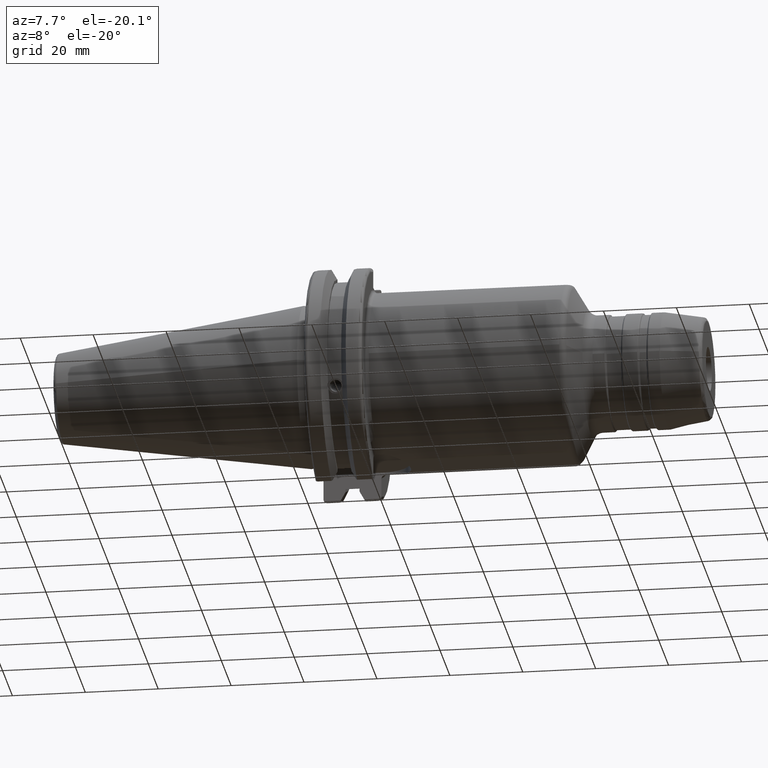
[diagram: clean part render]
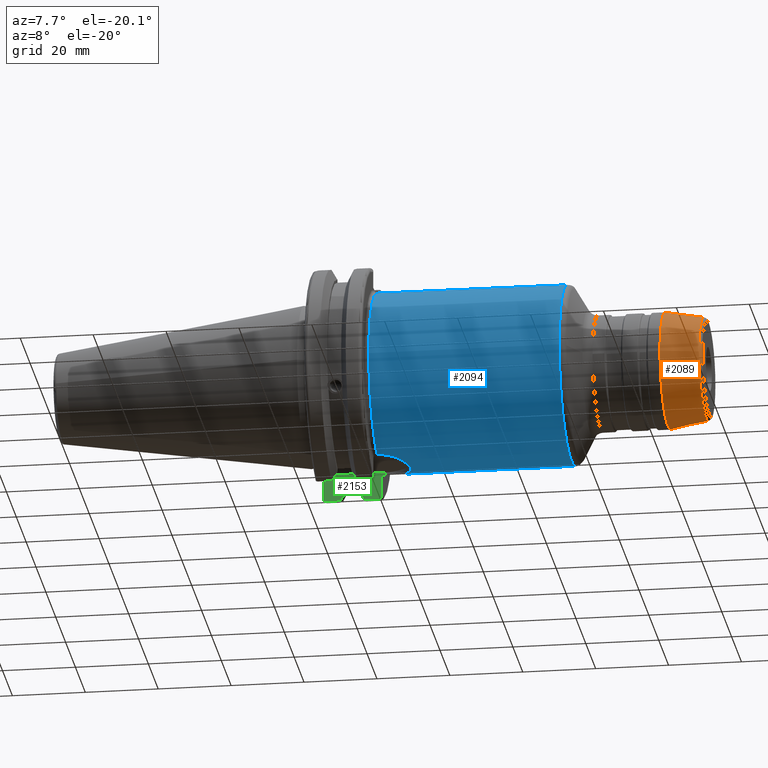
[diagram: same view with three faces highlighted in distinct colors, each labeled with its STEP entity id]
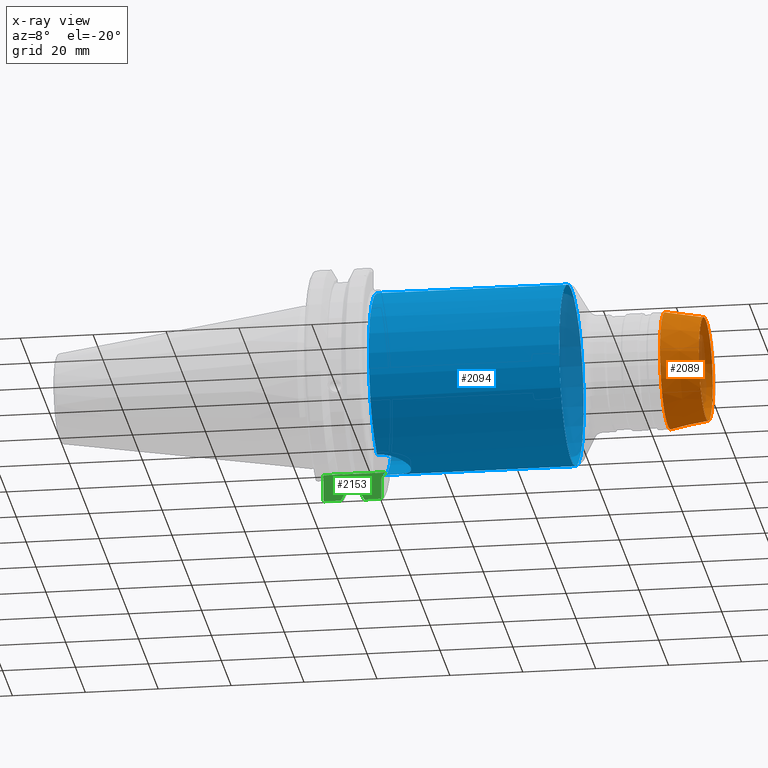
[diagram: x-ray of the same camera — body ghosted, the three highlighted faces saturated]
A machine part, auxiliary view with three faces highlighted in distinct colors.
The next image is the same camera in x-ray (body ghosted, the three faces saturated) — at least one of them is partly hidden behind the body in this view.
Their STEP definitions:

[orange] entity #2089 — the highlighted conical surface has half-angle 10 deg.
#107=CONICAL_SURFACE('',#2290,15.,0.174532925199433);
#190=FACE_OUTER_BOUND('',#298,.T.);
#298=EDGE_LOOP('',(#1513,#1514,#1515,#1516,#1517,#1518,#1519,#1520));
#408=LINE('',#3455,#502);
#502=VECTOR('',#2706,15.);
#655=CIRCLE('',#2286,14.1457081218349);
#656=CIRCLE('',#2287,14.1457081218349);
#657=CIRCLE('',#2288,14.1457081218349);
#659=CIRCLE('',#2291,15.9848077530122);
#660=CIRCLE('',#2292,15.9848077530122);
#661=CIRCLE('',#2293,15.9848077530122);
#831=VERTEX_POINT('',#3445);
#832=VERTEX_POINT('',#3447);
#833=VERTEX_POINT('',#3449);
#834=VERTEX_POINT('',#3454);
#835=VERTEX_POINT('',#3456);
#836=VERTEX_POINT('',#3458);
#1094=EDGE_CURVE('',#831,#832,#655,.T.);
#1095=EDGE_CURVE('',#832,#833,#656,.T.);
#1096=EDGE_CURVE('',#833,#831,#657,.T.);
#1098=EDGE_CURVE('',#832,#834,#408,.T.);
#1099=EDGE_CURVE('',#835,#834,#659,.T.);
#1100=EDGE_CURVE('',#836,#835,#660,.T.);
#1101=EDGE_CURVE('',#834,#836,#661,.T.);
#1513=ORIENTED_EDGE('',*,*,#1096,.F.);
#1514=ORIENTED_EDGE('',*,*,#1095,.F.);
#1515=ORIENTED_EDGE('',*,*,#1098,.T.);
#1516=ORIENTED_EDGE('',*,*,#1099,.F.);
#1517=ORIENTED_EDGE('',*,*,#1100,.F.);
#1518=ORIENTED_EDGE('',*,*,#1101,.F.);
#1519=ORIENTED_EDGE('',*,*,#1098,.F.);
#1520=ORIENTED_EDGE('',*,*,#1094,.F.);
#2089=ADVANCED_FACE('',(#190),#107,.T.);
#2286=AXIS2_PLACEMENT_3D('',#3448,#2696,#2697);
#2287=AXIS2_PLACEMENT_3D('',#3450,#2698,#2699);
#2288=AXIS2_PLACEMENT_3D('',#3451,#2700,#2701);
#2290=AXIS2_PLACEMENT_3D('',#3453,#2704,#2705);
#2291=AXIS2_PLACEMENT_3D('',#3457,#2707,#2708);
#2292=AXIS2_PLACEMENT_3D('',#3459,#2709,#2710);
#2293=AXIS2_PLACEMENT_3D('',#3460,#2711,#2712);
#2696=DIRECTION('center_axis',(1.,0.,0.));
#2697=DIRECTION('ref_axis',(0.,-1.,3.06161699786838E-17));
#2698=DIRECTION('center_axis',(1.,0.,0.));
#2699=DIRECTION('ref_axis',(0.,-1.,3.06161699786838E-17));
#2700=DIRECTION('center_axis',(1.,0.,0.));
#2701=DIRECTION('ref_axis',(0.,-1.,3.06161699786838E-17));
#2704=DIRECTION('center_axis',(-1.,0.,0.));
#2705=DIRECTION('ref_axis',(0.,1.,0.));
#2706=DIRECTION('',(-0.984807753012208,-0.17364817766693,-2.12657684957577E-17));
#2707=DIRECTION('center_axis',(-1.,0.,0.));
#2708=DIRECTION('ref_axis',(0.,-1.,3.06161699786838E-17));
#2709=DIRECTION('center_axis',(-1.,0.,0.));
#2710=DIRECTION('ref_axis',(0.,-1.,3.06161699786838E-17));
#2711=DIRECTION('center_axis',(-1.,0.,0.));
#2712=DIRECTION('ref_axis',(0.,-1.,3.06161699786838E-17));
#3445=CARTESIAN_POINT('',(109.173648177667,-1.73234961730779E-15,14.1457081218349));
#3447=CARTESIAN_POINT('',(109.173648177667,-14.1457081218349,-1.73234961730779E-15));
#3448=CARTESIAN_POINT('Origin',(109.173648177667,0.,-2.16543702163473E-15));
#3449=CARTESIAN_POINT('',(109.173648177667,14.1457081218349,-8.66174808653893E-16));
#3450=CARTESIAN_POINT('Origin',(109.173648177667,0.,-2.16543702163473E-15));
#3451=CARTESIAN_POINT('Origin',(109.173648177667,0.,-2.16543702163473E-15));
#3453=CARTESIAN_POINT('Origin',(104.328718180382,0.,0.));
#3454=CARTESIAN_POINT('',(98.7435958749056,-15.9848077530122,-1.95757436497122E-15));
#3455=CARTESIAN_POINT('',(104.328718180382,-15.,-1.83697019872103E-15));
#3456=CARTESIAN_POINT('',(98.7435958749056,15.9848077530122,-4.89393591242805E-15));
#3457=CARTESIAN_POINT('Origin',(98.7435958749056,0.,-2.44696795621402E-15));
#3458=CARTESIAN_POINT('',(98.7435958749056,-1.95757436497122E-15,15.9848077530122));
#3459=CARTESIAN_POINT('Origin',(98.7435958749056,0.,-2.44696795621402E-15));
#3460=CARTESIAN_POINT('Origin',(98.7435958749056,0.,-2.44696795621402E-15));

[blue] entity #2094 — the highlighted cylindrical surface (bore or boss wall) has radius 24.75 mm, axis along (1, 0, 0).
#142=B_SPLINE_CURVE_WITH_KNOTS('',3,(#3525,#3526,#3527,#3528,#3529,#3530,
#3531,#3532,#3533,#3534,#3535,#3536,#3537,#3538,#3539,#3540,#3541,#3542),
 .UNSPECIFIED.,.F.,.F.,(4,2,2,2,2,2,2,2,4),(-2.48845986202559,-2.17733241913027,
-1.86620497623495,-1.55521745362387,-1.24422993101279,-0.933242408401712,
-0.622254885790633,-0.311127442895316,0.),.UNSPECIFIED.);
#195=FACE_OUTER_BOUND('',#304,.T.);
#304=EDGE_LOOP('',(#1545,#1546,#1547,#1548,#1549,#1550,#1551,#1552));
#412=LINE('',#3524,#506);
#506=VECTOR('',#2746,24.75);
#666=CIRCLE('',#2301,24.75);
#667=CIRCLE('',#2302,24.75);
#670=CIRCLE('',#2307,24.75);
#671=CIRCLE('',#2308,24.75);
#672=CIRCLE('',#2309,24.75);
#842=VERTEX_POINT('',#3483);
#843=VERTEX_POINT('',#3494);
#844=VERTEX_POINT('',#3496);
#849=VERTEX_POINT('',#3519);
#850=VERTEX_POINT('',#3520);
#851=VERTEX_POINT('',#3522);
#1108=EDGE_CURVE('',#842,#843,#666,.T.);
#1109=EDGE_CURVE('',#843,#844,#667,.T.);
#1116=EDGE_CURVE('',#849,#850,#670,.T.);
#1117=EDGE_CURVE('',#851,#849,#671,.T.);
#1118=EDGE_CURVE('',#851,#843,#412,.T.);
#1119=EDGE_CURVE('',#842,#844,#142,.T.);
#1120=EDGE_CURVE('',#850,#851,#672,.T.);
#1545=ORIENTED_EDGE('',*,*,#1116,.F.);
#1546=ORIENTED_EDGE('',*,*,#1117,.F.);
#1547=ORIENTED_EDGE('',*,*,#1118,.T.);
#1548=ORIENTED_EDGE('',*,*,#1108,.F.);
#1549=ORIENTED_EDGE('',*,*,#1119,.T.);
#1550=ORIENTED_EDGE('',*,*,#1109,.F.);
#1551=ORIENTED_EDGE('',*,*,#1118,.F.);
#1552=ORIENTED_EDGE('',*,*,#1120,.F.);
#2040=CYLINDRICAL_SURFACE('',#2306,24.75);
#2094=ADVANCED_FACE('',(#195),#2040,.T.);
#2301=AXIS2_PLACEMENT_3D('',#3495,#2727,#2728);
#2302=AXIS2_PLACEMENT_3D('',#3497,#2729,#2730);
#2306=AXIS2_PLACEMENT_3D('',#3518,#2740,#2741);
#2307=AXIS2_PLACEMENT_3D('',#3521,#2742,#2743);
#2308=AXIS2_PLACEMENT_3D('',#3523,#2744,#2745);
#2309=AXIS2_PLACEMENT_3D('',#3543,#2747,#2748);
#2727=DIRECTION('center_axis',(-1.,0.,0.));
#2728=DIRECTION('ref_axis',(0.,6.12323399573676E-17,1.));
#2729=DIRECTION('center_axis',(-1.,0.,0.));
#2730=DIRECTION('ref_axis',(0.,6.12323399573676E-17,1.));
#2740=DIRECTION('center_axis',(1.,0.,0.));
#2741=DIRECTION('ref_axis',(0.,1.,0.));
#2742=DIRECTION('center_axis',(1.,0.,0.));
#2743=DIRECTION('ref_axis',(0.,-1.,1.83697019872103E-16));
#2744=DIRECTION('center_axis',(1.,0.,0.));
#2745=DIRECTION('ref_axis',(0.,-1.,1.83697019872103E-16));
#2746=DIRECTION('',(-1.,0.,0.));
#2747=DIRECTION('center_axis',(1.,0.,0.));
#2748=DIRECTION('ref_axis',(0.,-1.,1.83697019872103E-16));
#3483=CARTESIAN_POINT('',(20.05,-8.19,-23.3556502799644));
#3494=CARTESIAN_POINT('',(20.05,-24.75,-3.0310008278897E-15));
#3495=CARTESIAN_POINT('Origin',(20.05,0.,0.));
#3496=CARTESIAN_POINT('',(20.05,8.19,-23.3556502799644));
#3497=CARTESIAN_POINT('Origin',(20.05,0.,0.));
#3518=CARTESIAN_POINT('Origin',(46.2490925722954,0.,0.));
#3519=CARTESIAN_POINT('',(72.2934846062115,24.75,-1.51550041394485E-15));
#3520=CARTESIAN_POINT('',(72.2934846062115,-3.0310008278897E-15,24.75));
#3521=CARTESIAN_POINT('Origin',(72.2934846062115,0.,0.));
#3522=CARTESIAN_POINT('',(72.2934846062115,-24.75,-3.0310008278897E-15));
#3523=CARTESIAN_POINT('Origin',(72.2934846062115,0.,0.));
#3524=CARTESIAN_POINT('',(46.2490925722954,-24.75,-3.0310008278897E-15));
#3525=CARTESIAN_POINT('Ctrl Pts',(20.05,-8.19,-23.3556502799644));
#3526=CARTESIAN_POINT('Ctrl Pts',(21.0870914763177,-8.19,-23.3556502799644));
#3527=CARTESIAN_POINT('Ctrl Pts',(22.1874172494719,-7.98112852617488,-23.4319820145953));
#3528=CARTESIAN_POINT('Ctrl Pts',(24.2026226557734,-7.14301766428651,-23.7009173446597));
#3529=CARTESIAN_POINT('Ctrl Pts',(25.1182638848105,-6.51414519102515,-23.8889373554493));
#3530=CARTESIAN_POINT('Ctrl Pts',(26.563820070037,-5.06858900579863,-24.2368381566145));
#3531=CARTESIAN_POINT('Ctrl Pts',(27.192942953437,-4.15281808103606,-24.420258379043));
#3532=CARTESIAN_POINT('Ctrl Pts',(28.0312404144778,-2.13713243178097,-24.6784841969774));
#3533=CARTESIAN_POINT('Ctrl Pts',(28.24,-1.03662507537027,-24.75));
#3534=CARTESIAN_POINT('Ctrl Pts',(28.24,1.03662507537027,-24.75));
#3535=CARTESIAN_POINT('Ctrl Pts',(28.0312404144778,2.13713243178098,-24.6784841969774));
#3536=CARTESIAN_POINT('Ctrl Pts',(27.1929429534371,4.15281808103607,-24.420258379043));
#3537=CARTESIAN_POINT('Ctrl Pts',(26.563820070037,5.06858900579863,-24.2368381566145));
#3538=CARTESIAN_POINT('Ctrl Pts',(25.1182638848105,6.51414519102515,-23.8889373554493));
#3539=CARTESIAN_POINT('Ctrl Pts',(24.2026226557734,7.14301766428652,-23.7009173446597));
#3540=CARTESIAN_POINT('Ctrl Pts',(22.1874172494719,7.98112852617489,-23.4319820145953));
#3541=CARTESIAN_POINT('Ctrl Pts',(21.0870914763177,8.19,-23.3556502799644));
#3542=CARTESIAN_POINT('Ctrl Pts',(20.05,8.19,-23.3556502799644));
#3543=CARTESIAN_POINT('Origin',(72.2934846062115,0.,0.));

[green] entity #2153 — the highlighted planar face has unit normal (-0, 1, 0).
#19=(
BOUNDED_CURVE()
B_SPLINE_CURVE(2,(#3864,#3865,#3866),.UNSPECIFIED.,.F.,.F.)
B_SPLINE_CURVE_WITH_KNOTS((3,3),(0.,0.276549142796136),.UNSPECIFIED.)
CURVE()
GEOMETRIC_REPRESENTATION_ITEM()
RATIONAL_B_SPLINE_CURVE((1.,1.00095203903316,1.00031614444813))
REPRESENTATION_ITEM('')
);
#29=(
BOUNDED_CURVE()
B_SPLINE_CURVE(2,(#4183,#4184,#4185),.UNSPECIFIED.,.F.,.F.)
B_SPLINE_CURVE_WITH_KNOTS((3,3),(0.0550586467393769,0.331607789535852),
 .UNSPECIFIED.)
CURVE()
GEOMETRIC_REPRESENTATION_ITEM()
RATIONAL_B_SPLINE_CURVE((1.00031614444922,1.00095203903643,1.))
REPRESENTATION_ITEM('')
);
#73=PLANE('',#2461);
#141=B_SPLINE_CURVE_WITH_KNOTS('',3,(#3499,#3500,#3501,#3502,#3503,#3504,
#3505,#3506,#3507,#3508),.UNSPECIFIED.,.F.,.F.,(4,2,2,2,4),(0.304368806480559,
0.340725916583545,0.378182862999889,0.416941083206328,0.456701403892246),
 .UNSPECIFIED.);
#154=B_SPLINE_CURVE_WITH_KNOTS('',3,(#3966,#3967,#3968,#3969,#3970,#3971),
 .UNSPECIFIED.,.F.,.F.,(4,2,4),(0.452741154494497,0.491581665024871,0.505824174364157),
 .UNSPECIFIED.);
#168=B_SPLINE_CURVE_WITH_KNOTS('',3,(#4135,#4136,#4137,#4138,#4139,#4140),
 .UNSPECIFIED.,.F.,.F.,(4,2,4),(0.0977210450333169,0.111963554372601,0.150804064902975),
 .UNSPECIFIED.);
#254=FACE_OUTER_BOUND('',#373,.T.);
#373=EDGE_LOOP('',(#1919,#1920,#1921,#1922,#1923,#1924,#1925,#1926,#1927,
#1928,#1929,#1930,#1931,#1932));
#415=LINE('',#3567,#509);
#418=LINE('',#3588,#512);
#443=LINE('',#3885,#537);
#444=LINE('',#3889,#538);
#445=LINE('',#3893,#539);
#454=LINE('',#3947,#548);
#476=LINE('',#4143,#570);
#482=LINE('',#4181,#576);
#483=LINE('',#4186,#577);
#509=VECTOR('',#2777,10.);
#512=VECTOR('',#2802,10.);
#537=VECTOR('',#2955,10.);
#538=VECTOR('',#2960,10.);
#539=VECTOR('',#2965,10.);
#548=VECTOR('',#3022,10.);
#570=VECTOR('',#3078,10.);
#576=VECTOR('',#3122,10.);
#577=VECTOR('',#3123,10.);
#844=VERTEX_POINT('',#3496);
#845=VERTEX_POINT('',#3498);
#859=VERTEX_POINT('',#3565);
#866=VERTEX_POINT('',#3587);
#926=VERTEX_POINT('',#3861);
#927=VERTEX_POINT('',#3863);
#932=VERTEX_POINT('',#3883);
#933=VERTEX_POINT('',#3887);
#934=VERTEX_POINT('',#3891);
#954=VERTEX_POINT('',#3944);
#955=VERTEX_POINT('',#3946);
#960=VERTEX_POINT('',#3965);
#985=VERTEX_POINT('',#4126);
#996=VERTEX_POINT('',#4182);
#1110=EDGE_CURVE('',#844,#845,#141,.T.);
#1132=EDGE_CURVE('',#859,#844,#415,.T.);
#1141=EDGE_CURVE('',#845,#866,#418,.T.);
#1221=EDGE_CURVE('',#926,#927,#19,.T.);
#1228=EDGE_CURVE('',#932,#926,#443,.T.);
#1230=EDGE_CURVE('',#933,#932,#444,.T.);
#1232=EDGE_CURVE('',#934,#933,#445,.T.);
#1257=EDGE_CURVE('',#954,#955,#454,.T.);
#1264=EDGE_CURVE('',#866,#960,#154,.T.);
#1304=EDGE_CURVE('',#985,#954,#168,.T.);
#1306=EDGE_CURVE('',#927,#985,#476,.T.);
#1323=EDGE_CURVE('',#859,#955,#482,.T.);
#1324=EDGE_CURVE('',#996,#934,#29,.T.);
#1325=EDGE_CURVE('',#960,#996,#483,.T.);
#1919=ORIENTED_EDGE('',*,*,#1264,.F.);
#1920=ORIENTED_EDGE('',*,*,#1141,.F.);
#1921=ORIENTED_EDGE('',*,*,#1110,.F.);
#1922=ORIENTED_EDGE('',*,*,#1132,.F.);
#1923=ORIENTED_EDGE('',*,*,#1323,.T.);
#1924=ORIENTED_EDGE('',*,*,#1257,.F.);
#1925=ORIENTED_EDGE('',*,*,#1304,.F.);
#1926=ORIENTED_EDGE('',*,*,#1306,.F.);
#1927=ORIENTED_EDGE('',*,*,#1221,.F.);
#1928=ORIENTED_EDGE('',*,*,#1228,.F.);
#1929=ORIENTED_EDGE('',*,*,#1230,.F.);
#1930=ORIENTED_EDGE('',*,*,#1232,.F.);
#1931=ORIENTED_EDGE('',*,*,#1324,.F.);
#1932=ORIENTED_EDGE('',*,*,#1325,.F.);
#2153=ADVANCED_FACE('',(#254),#73,.F.);
#2461=AXIS2_PLACEMENT_3D('',#4180,#3120,#3121);
#2777=DIRECTION('',(0.,0.,-1.));
#2802=DIRECTION('',(0.,0.,-1.));
#2955=DIRECTION('',(0.,0.,-1.));
#2960=DIRECTION('',(-1.,0.,0.));
#2965=DIRECTION('',(0.,0.,1.));
#3022=DIRECTION('',(0.,0.,1.));
#3078=DIRECTION('',(-1.,-1.31581988103722E-16,0.));
#3120=DIRECTION('center_axis',(-1.31581988103722E-16,1.,0.));
#3121=DIRECTION('ref_axis',(1.,1.31581988103722E-16,0.));
#3122=DIRECTION('',(-1.,-1.31581988103722E-16,0.));
#3123=DIRECTION('',(-1.,-1.31581988103722E-16,0.));
#3496=CARTESIAN_POINT('',(20.05,8.19,-23.3556502799644));
#3498=CARTESIAN_POINT('',(19.05,8.19,-24.4128326910254));
#3499=CARTESIAN_POINT('Ctrl Pts',(20.05,8.19,-23.3556502799644));
#3500=CARTESIAN_POINT('Ctrl Pts',(19.92880963299,8.19,-23.3556502799644));
#3501=CARTESIAN_POINT('Ctrl Pts',(19.7864204604307,8.19,-23.3852265342659));
#3502=CARTESIAN_POINT('Ctrl Pts',(19.5602603745075,8.19,-23.4821320058467));
#3503=CARTESIAN_POINT('Ctrl Pts',(19.4373931081247,8.19,-23.5678758115065));
#3504=CARTESIAN_POINT('Ctrl Pts',(19.2609009617474,8.19,-23.7506111583087));
#3505=CARTESIAN_POINT('Ctrl Pts',(19.177275426903,8.19,-23.8811560320461));
#3506=CARTESIAN_POINT('Ctrl Pts',(19.079885359023,8.19,-24.124090110551));
#3507=CARTESIAN_POINT('Ctrl Pts',(19.05,8.19,-24.280298288739));
#3508=CARTESIAN_POINT('Ctrl Pts',(19.05,8.19,-24.4128326910254));
#3565=CARTESIAN_POINT('',(20.05,8.19,-22.6));
#3567=CARTESIAN_POINT('',(20.05,8.19,-22.6));
#3587=CARTESIAN_POINT('',(19.05,8.19,-29.6392712461019));
#3588=CARTESIAN_POINT('',(19.05,8.19,-11.3));
#3861=CARTESIAN_POINT('',(9.2191,8.19,-27.7771386827498));
#3863=CARTESIAN_POINT('',(7.88668530351257,8.19,-30.1755016258903));
#3864=CARTESIAN_POINT('Ctrl Pts',(9.2191,8.19,-27.7771386827498));
#3865=CARTESIAN_POINT('Ctrl Pts',(8.58046356152393,8.19,-28.9303689539705));
#3866=CARTESIAN_POINT('Ctrl Pts',(7.88668530351257,8.19,-30.1755016258903));
#3883=CARTESIAN_POINT('',(9.2191,8.19,-26.932255754021));
#3885=CARTESIAN_POINT('',(9.2191,8.18999999999999,-11.3));
#3887=CARTESIAN_POINT('',(13.0491,8.19,-26.932255754021));
#3889=CARTESIAN_POINT('',(11.1341,8.19,-26.932255754021));
#3891=CARTESIAN_POINT('',(13.0491,8.19,-27.7771386827498));
#3893=CARTESIAN_POINT('',(13.0491,8.19,-11.3));
#3944=CARTESIAN_POINT('',(3.175,8.18999999999999,-29.6392712461019));
#3946=CARTESIAN_POINT('',(3.175,8.19,-22.6));
#3947=CARTESIAN_POINT('',(3.175,8.18999999999999,-11.3));
#3965=CARTESIAN_POINT('',(18.9058722749097,8.19,-30.1755016258903));
#3966=CARTESIAN_POINT('Ctrl Pts',(19.05,8.19,-29.6392712461019));
#3967=CARTESIAN_POINT('Ctrl Pts',(19.05,8.19,-29.7687396145364));
#3968=CARTESIAN_POINT('Ctrl Pts',(19.0204855670831,8.19,-29.9212724384851));
#3969=CARTESIAN_POINT('Ctrl Pts',(18.9539643471756,8.19,-30.0852355256475));
#3970=CARTESIAN_POINT('Ctrl Pts',(18.9318163728133,8.19,-30.131014531546));
#3971=CARTESIAN_POINT('Ctrl Pts',(18.9058722749097,8.19,-30.1755016258903));
#4126=CARTESIAN_POINT('',(3.31912772509028,8.19,-30.1755016258903));
#4135=CARTESIAN_POINT('Ctrl Pts',(3.31912772509028,8.19,-30.1755016258903));
#4136=CARTESIAN_POINT('Ctrl Pts',(3.29318362718666,8.19,-30.131014531546));
#4137=CARTESIAN_POINT('Ctrl Pts',(3.27103565282437,8.19,-30.0852355256475));
#4138=CARTESIAN_POINT('Ctrl Pts',(3.20451443291695,8.19,-29.9212724384851));
#4139=CARTESIAN_POINT('Ctrl Pts',(3.175,8.19,-29.7687396145364));
#4140=CARTESIAN_POINT('Ctrl Pts',(3.175,8.19,-29.6392712461019));
#4143=CARTESIAN_POINT('',(5.39146661546218,8.19,-30.1755016258903));
#4180=CARTESIAN_POINT('Origin',(3.175,8.19,-22.6));
#4181=CARTESIAN_POINT('',(20.05,8.19,-22.6));
#4182=CARTESIAN_POINT('',(14.3815146964874,8.19,-30.1755016258903));
#4183=CARTESIAN_POINT('Ctrl Pts',(14.3815146964874,8.18999999999999,-30.1755016258903));
#4184=CARTESIAN_POINT('Ctrl Pts',(13.687736438474,8.19,-28.9303689539668));
#4185=CARTESIAN_POINT('Ctrl Pts',(13.0491,8.19,-27.7771386827498));
#4186=CARTESIAN_POINT('',(16.8551333845378,8.19,-30.1755016258903));